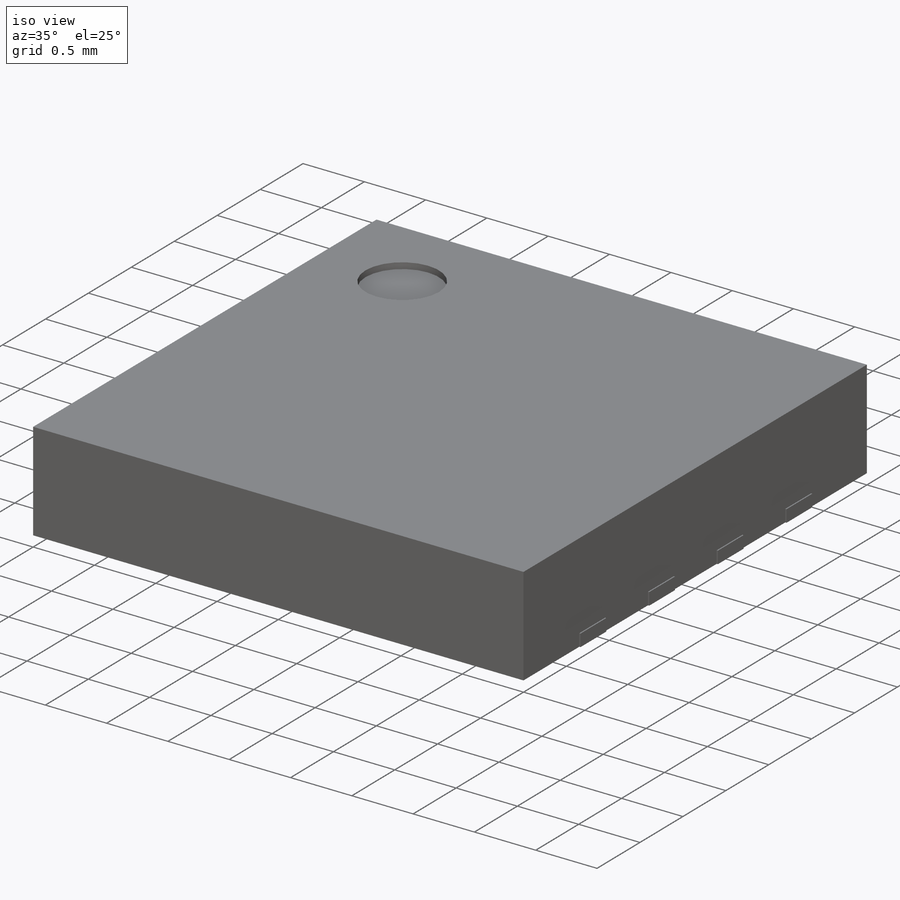
[diagram: iso view]
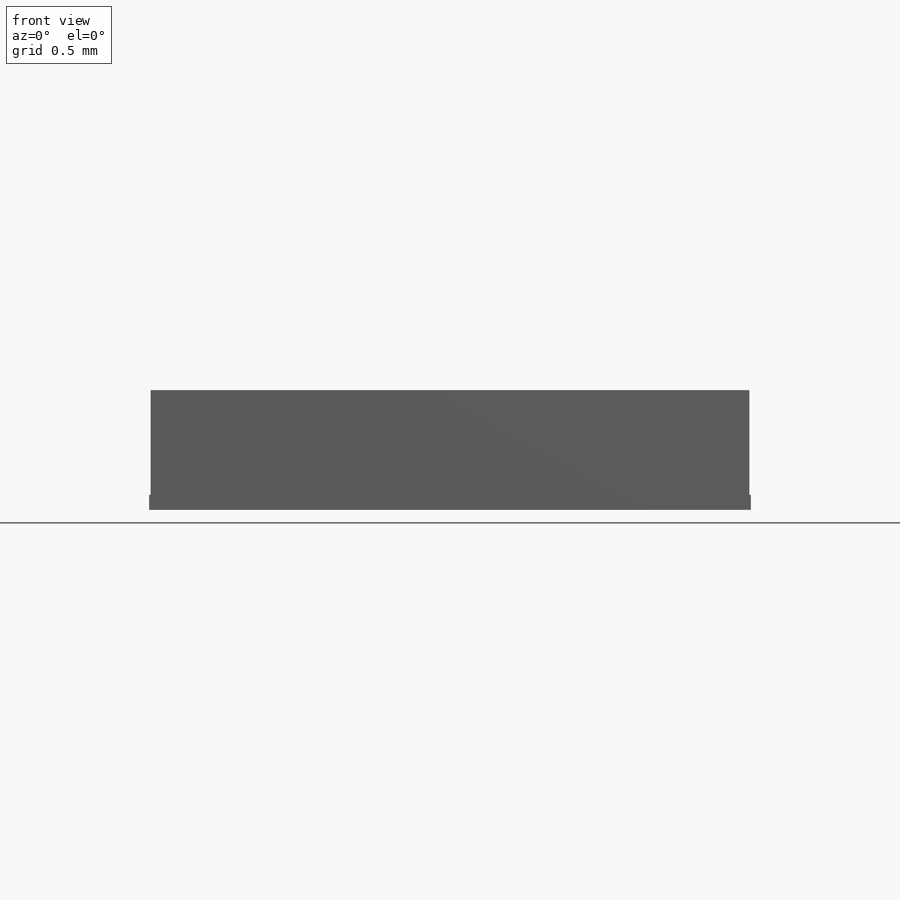
[diagram: front view]
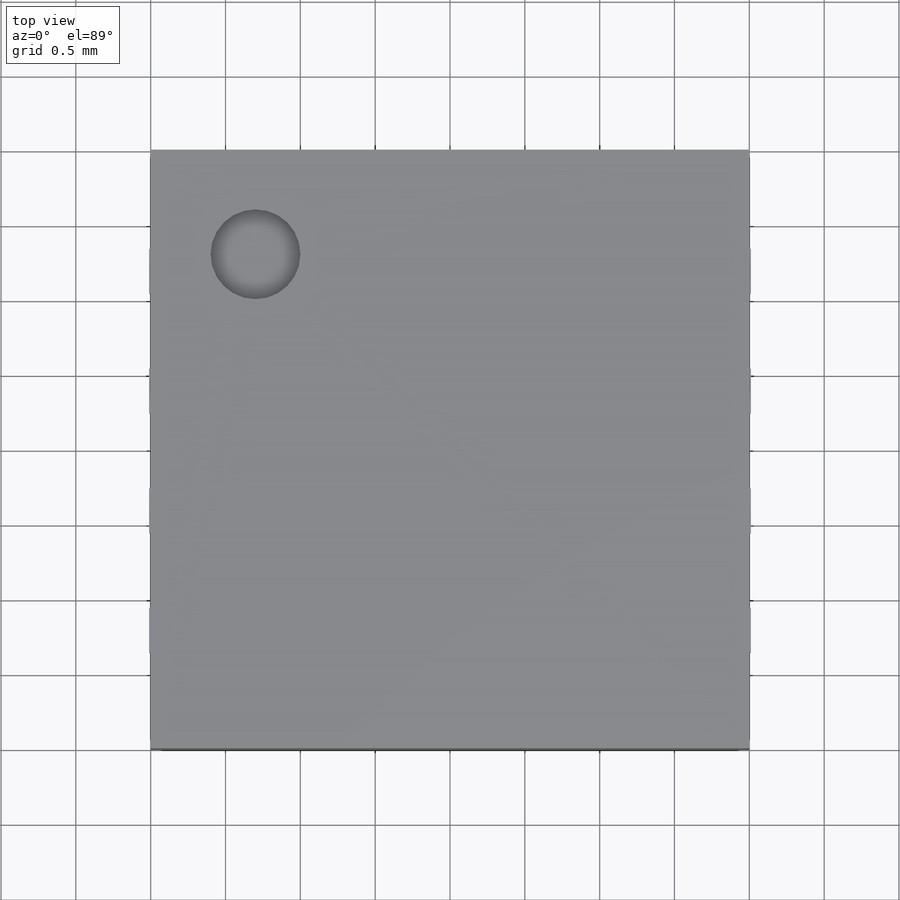
[diagram: top view]
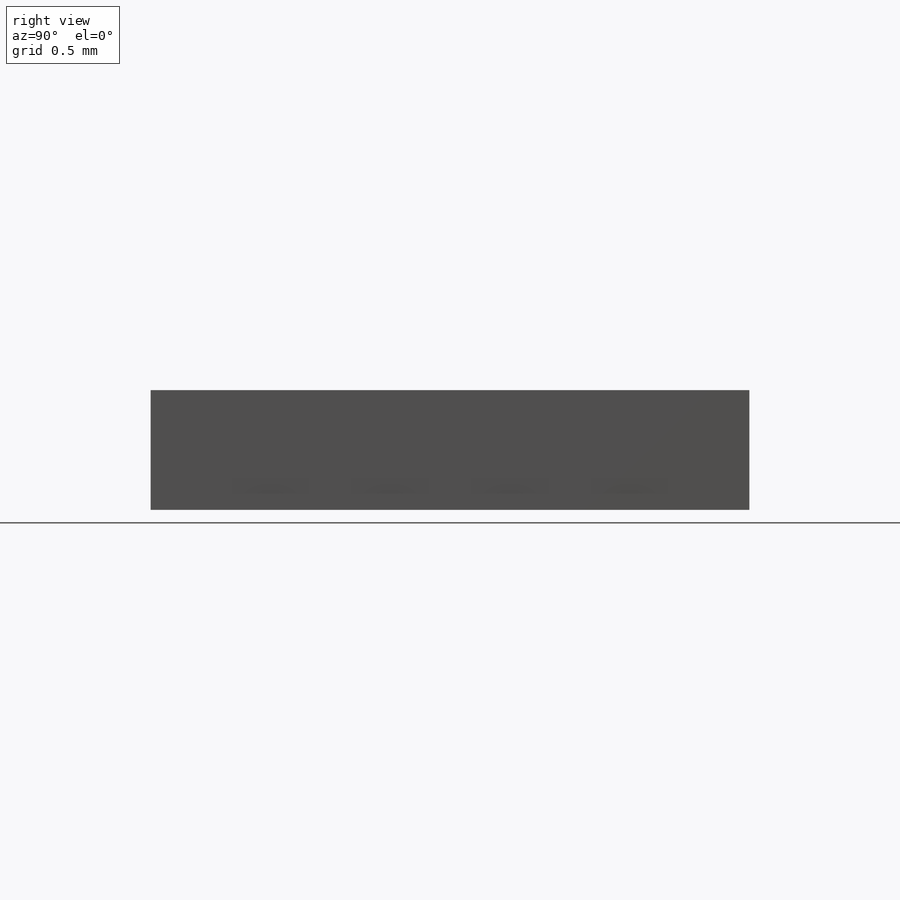
[diagram: right view]
SOLIDWORKS PART (.sldprt)
format: sldprt  version: not decoded by parser v0  size: 211,968 bytes
history: native  units: mm
features: sketch x3, extrude x2, material x1, mirror x1, cut_extrude x1 (+16 scaffold rows collapsed)
feature tree (24):
  scaffold x16  (default folders/planes/origin — collapsed)
  material  "Material <not specified>"
  sketch  "Sketch1"  dims[D1=4.0mm]
  extrude  "Boss-Extrude1"  Depth=0.8mm
  sketch  "Sketch2"  dims[D1=0.8mm D2=0.4mm D3=0.3mm D4=0.1mm]
  extrude  "Boss-Extrude2"  Depth=0.01mm
  mirror  "Mirror1"
  sketch  "Sketch3"  dims[c1.D1=0.6mm c1.D3=0.5mm c1.D2=0.7mm c2.D3=0.7mm]
  cut_extrude  "Cut-Extrude1"  Depth=0.05mm
decode coverage: 6 of 7 modeling features carry decoded parameters
note: suppression state not decoded; provenance and decode notes live in map.json
